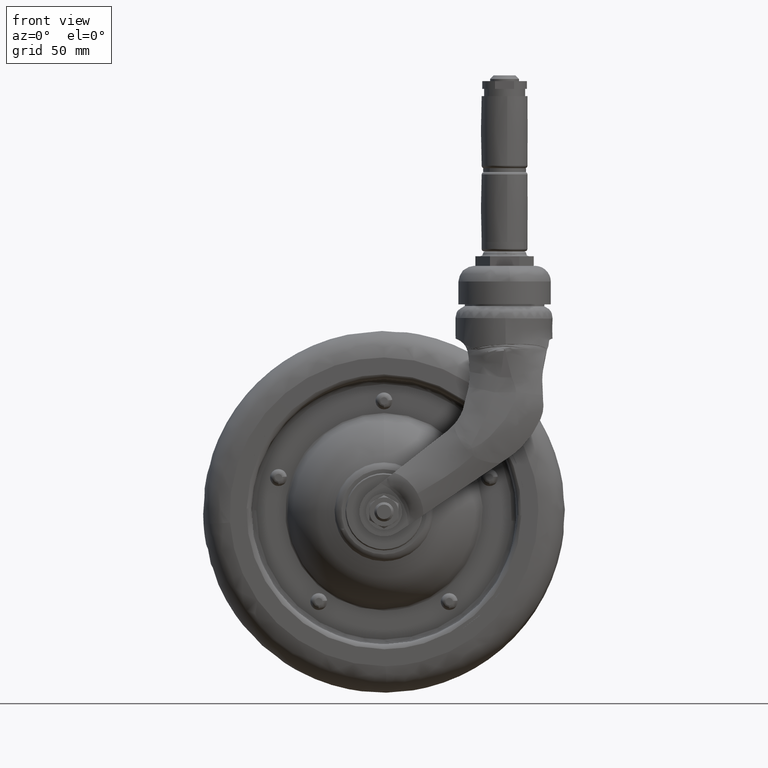
[diagram: clean part render]
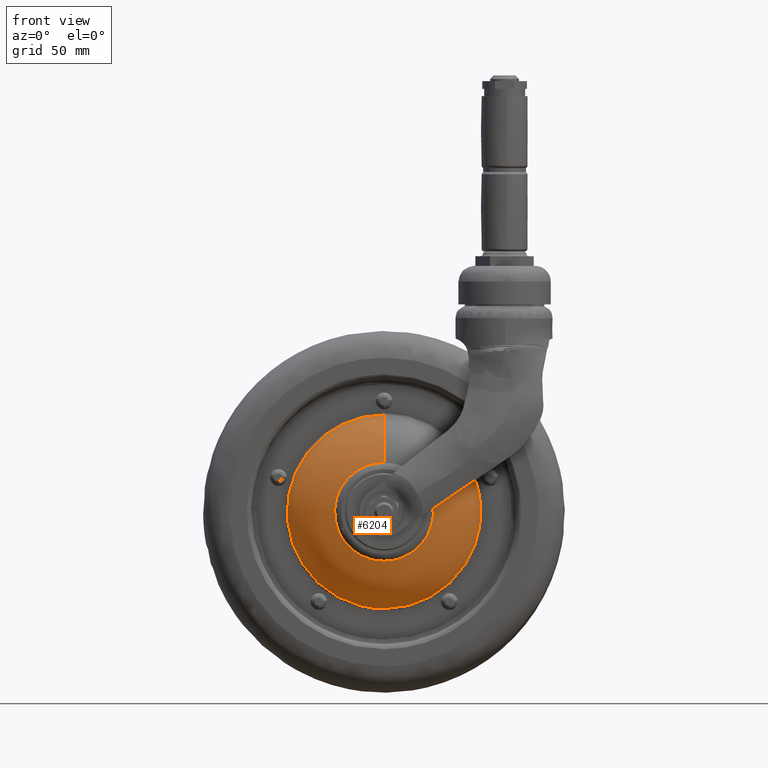
[diagram: same view with one face highlighted and labeled with its STEP entity id]
A machine part, front view. The second image highlights one B-rep face of the part: STEP entity #6204.
In plain terms, the highlighted face is a freeform B-spline surface patch.
Its self-contained STEP definition (entity closure, byte-faithful):
#2589=CARTESIAN_POINT('',(-24.494241567544019,-1.978960431667409,31.817445445923319));
#2590=VERTEX_POINT('',#2589);
#2591=CARTESIAN_POINT('',(0.0,-1.978906741935480,-40.153705379607203));
#2592=VERTEX_POINT('',#2591);
#2593=CARTESIAN_POINT('',(-24.494241567544019,-1.978960431667409,31.817445445923319));
#2594=CARTESIAN_POINT('',(-26.966019463600659,-1.978958991824047,29.915405191856109));
#2595=CARTESIAN_POINT('',(-30.806617439566850,-1.978956163817442,26.170494247999098));
#2596=CARTESIAN_POINT('',(-34.703907982289323,-1.978951867124223,20.463327648507569));
#2597=CARTESIAN_POINT('',(-37.526596968715751,-1.978947568089783,14.743390497954650));
#2598=CARTESIAN_POINT('',(-39.241085730417183,-1.978943453790768,9.260392022130620));
#2599=CARTESIAN_POINT('',(-40.160417413085348,-1.978938823026561,3.080050970328775));
#2600=CARTESIAN_POINT('',(-40.229630709134739,-1.978934433872858,-2.785027499417303));
#2601=CARTESIAN_POINT('',(-39.361882719845227,-1.978930097305453,-8.588235981418491));
#2602=CARTESIAN_POINT('',(-37.765456132856052,-1.978926093593329,-13.953152047487260));
#2603=CARTESIAN_POINT('',(-35.505252699287141,-1.978922274257157,-19.077622239299458));
#2604=CARTESIAN_POINT('',(-32.289185946475328,-1.978918507285237,-24.140689001786111));
#2605=CARTESIAN_POINT('',(-28.503365447594160,-1.978915311183395,-28.445952120832050));
#2606=CARTESIAN_POINT('',(-23.799732137884661,-1.978912265006219,-32.559090220364702));
#2607=CARTESIAN_POINT('',(-19.035601588809030,-1.978910070545651,-35.534530026971247));
#2608=CARTESIAN_POINT('',(-13.780173170475020,-1.978908407348865,-37.804392965716552));
#2609=CARTESIAN_POINT('',(-7.926738715626335,-1.978907110066175,-39.590610966784823));
#2610=CARTESIAN_POINT('',(-3.118890148089880,-1.978906720489815,-40.154381661647477));
#2611=CARTESIAN_POINT('',(0.0,-1.978906741935480,-40.153705379607203));
#2612=B_SPLINE_CURVE_WITH_KNOTS('',3,(#2593,#2594,#2595,#2596,#2597,#2598,#2599,#2600,#2601,#2602,#2603,#2604,#2605,#2606,#2607,#2608,#2609,#2610,#2611),.UNSPECIFIED.,.F.,.U.,(4,1,1,1,1,1,1,1,1,1,1,1,1,1,1,1,4),(0.000000098294947,9.356530273067961,15.984070397440821,20.662330314960780,28.459493575247048,33.137795891929443,39.375447965563183,46.003070834849609,50.681227289610653,56.139211600195033,62.766700054423481,68.614578512917959,73.292885141698235,81.479888587225830,85.378474723106677,90.446584796214267,99.803077252082971),.UNSPECIFIED.);
#2613=EDGE_CURVE('',#2590,#2592,#2612,.T.);
#2683=CARTESIAN_POINT('',(37.564166313767572,-1.978906741714115,14.186383079374350));
#2684=VERTEX_POINT('',#2683);
#2692=CARTESIAN_POINT('',(0.0,-1.978906741935480,-40.153705379607203));
#2693=CARTESIAN_POINT('',(2.727184587800870,-1.978906741944793,-40.154031587075330));
#2694=CARTESIAN_POINT('',(8.282403377795726,-1.978906741960102,-39.585695282387853));
#2695=CARTESIAN_POINT('',(15.828826639747870,-1.978906741970346,-37.173585430974867));
#2696=CARTESIAN_POINT('',(21.872876312029920,-1.978906741969643,-33.856679267281272));
#2697=CARTESIAN_POINT('',(27.018843031017109,-1.978906741961893,-29.922219000029919));
#2698=CARTESIAN_POINT('',(31.576480428964370,-1.978906741946810,-25.159146633553270));
#2699=CARTESIAN_POINT('',(35.033972374493580,-1.978906741924827,-19.906935317529140));
#2700=CARTESIAN_POINT('',(37.311436577579450,-1.978906741901365,-15.053959413008640));
#2701=CARTESIAN_POINT('',(39.111701981902080,-1.978906741873694,-9.788924850787366));
#2702=CARTESIAN_POINT('',(40.117287422458567,-1.978906741840424,-4.091924439282451));
#2703=CARTESIAN_POINT('',(40.205504460367031,-1.978906741805574,1.371696992638945));
#2704=CARTESIAN_POINT('',(39.682016128252663,-1.978906741766232,7.212670680761350));
#2705=CARTESIAN_POINT('',(38.635369461605791,-1.978906741735944,11.351781569597460));
#2706=CARTESIAN_POINT('',(37.564166313767572,-1.978906741714115,14.186383079374350));
#2707=B_SPLINE_CURVE_WITH_KNOTS('',3,(#2692,#2693,#2694,#2695,#2696,#2697,#2698,#2699,#2700,#2701,#2702,#2703,#2704,#2705,#2706),.UNSPECIFIED.,.F.,.U.,(4,1,1,1,1,1,1,1,1,1,1,1,4),(0.000000190427258,8.181515767689433,16.666039733911369,23.635527693192120,28.786827475129449,36.059310973043438,43.331653535268828,47.573985266815569,52.119290624519671,59.997806060697620,64.846115941488094,68.482350215274522,77.572913906646548),.UNSPECIFIED.);
#2708=EDGE_CURVE('',#2592,#2684,#2707,.T.);
#2736=CARTESIAN_POINT('',(0.0,-1.978968418130079,40.153667723798378));
#2737=VERTEX_POINT('',#2736);
#2738=CARTESIAN_POINT('',(0.0,-1.978968418130079,40.153667723798378));
#2739=CARTESIAN_POINT('',(-3.155874450732798,-1.978968235830945,40.154464402714453));
#2740=CARTESIAN_POINT('',(-7.408948850448293,-1.978967591596224,39.649582362758672));
#2741=CARTESIAN_POINT('',(-13.089080984158830,-1.978965991149722,38.035823673325602));
#2742=CARTESIAN_POINT('',(-18.324726305449431,-1.978964043886832,35.949084151987734));
#2743=CARTESIAN_POINT('',(-22.211364721133311,-1.978961948924541,33.575579583273679));
#2744=CARTESIAN_POINT('',(-24.494241567544019,-1.978960431667409,31.817445445923319));
#2745=B_SPLINE_CURVE_WITH_KNOTS('',3,(#2738,#2739,#2740,#2741,#2742,#2743,#2744),.UNSPECIFIED.,.F.,.U.,(4,1,1,1,4),(6.605671E-009,9.467370899617691,12.760368842972939,17.699865002030819,26.343985926508701),.UNSPECIFIED.);
#2746=EDGE_CURVE('',#2737,#2590,#2745,.T.);
#3118=CARTESIAN_POINT('',(19.244042876104860,-15.749896956222120,7.065172944055531));
#3119=VERTEX_POINT('',#3118);
#3130=CARTESIAN_POINT('',(0.0,-15.749887032579160,20.500001718488630));
#3131=VERTEX_POINT('',#3130);
#3145=CARTESIAN_POINT('',(-18.808470711593650,-15.749887639794400,-8.154226731409059));
#3146=VERTEX_POINT('',#3145);
#3147=CARTESIAN_POINT('',(-18.808470711593650,-15.749887639794400,-8.154226731409059));
#3148=CARTESIAN_POINT('',(-19.523688578647519,-15.749887589030410,-6.505811167211627));
#3149=CARTESIAN_POINT('',(-20.282499127596019,-15.749887510436720,-3.839888735883888));
#3150=CARTESIAN_POINT('',(-20.586121445629399,-15.749887400901409,0.121807368716864));
#3151=CARTESIAN_POINT('',(-20.334023880931170,-15.749887320394601,3.188812612771966));
#3152=CARTESIAN_POINT('',(-19.638426150327430,-15.749887248751550,6.072033182264242));
#3153=CARTESIAN_POINT('',(-18.563167831755919,-15.749887182157369,8.892097455200091));
#3154=CARTESIAN_POINT('',(-17.036305371558282,-15.749887123506420,11.565120799744520));
#3155=CARTESIAN_POINT('',(-14.967395158166379,-15.749887072922901,14.116148747747250));
#3156=CARTESIAN_POINT('',(-12.819301531127699,-15.749887038678761,16.087214602840650));
#3157=CARTESIAN_POINT('',(-10.020597440589640,-15.749887011750291,17.999597380055871));
#3158=CARTESIAN_POINT('',(-6.928319615601082,-15.749887000815971,19.414864344265819));
#3159=CARTESIAN_POINT('',(-3.382225095675959,-15.749887007891379,20.310655232784171));
#3160=CARTESIAN_POINT('',(-1.162645629883573,-15.749887022334960,20.500092159422081));
#3161=CARTESIAN_POINT('',(0.0,-15.749887032579160,20.500001718488630));
#3162=B_SPLINE_CURVE_WITH_KNOTS('',3,(#3147,#3148,#3149,#3150,#3151,#3152,#3153,#3154,#3155,#3156,#3157,#3158,#3159,#3160,#3161),.UNSPECIFIED.,.F.,.U.,(4,1,1,1,1,1,1,1,1,1,1,1,4),(0.000000298345419,5.390482022558594,8.244345433323765,11.890923000655070,14.586198236808240,17.122970156784518,20.927895219243499,23.781729765425389,26.952679526806509,29.647969229186138,33.928730040646627,37.099679802028383,40.587606290436291),.UNSPECIFIED.);
#3163=EDGE_CURVE('',#3146,#3131,#3162,.T.);
#3216=CARTESIAN_POINT('',(0.0,-15.749887444684401,-20.499999682383251));
#3217=VERTEX_POINT('',#3216);
#3218=CARTESIAN_POINT('',(0.0,-15.749887444684401,-20.499999682383251));
#3219=CARTESIAN_POINT('',(-1.798575650054507,-15.749887444675950,-20.500534572317971));
#3220=CARTESIAN_POINT('',(-4.961300104474028,-15.749887451305460,-20.081045305689258));
#3221=CARTESIAN_POINT('',(-8.748465264048718,-15.749887474045231,-18.642163574888041));
#3222=CARTESIAN_POINT('',(-11.757403691499180,-15.749887501678050,-16.893675050964688));
#3223=CARTESIAN_POINT('',(-14.274005528027200,-15.749887533884239,-14.855787122288980));
#3224=CARTESIAN_POINT('',(-16.852051957041478,-15.749887580558340,-11.902451440395881));
#3225=CARTESIAN_POINT('',(-18.192008838252839,-15.749887617310881,-9.576900764971247));
#3226=CARTESIAN_POINT('',(-18.808470711593650,-15.749887639794400,-8.154226731409059));
#3227=B_SPLINE_CURVE_WITH_KNOTS('',3,(#3218,#3219,#3220,#3221,#3222,#3223,#3224,#3225,#3226),.UNSPECIFIED.,.F.,.U.,(4,1,1,1,1,1,4),(0.000000117553892,5.395630767866962,9.488922616980618,12.093604836767190,15.814772872866881,19.163818075862618,23.815226675601220),.UNSPECIFIED.);
#3228=EDGE_CURVE('',#3217,#3146,#3227,.T.);
#3230=CARTESIAN_POINT('',(19.244042876104860,-15.749896956222120,7.065172944055531));
#3231=CARTESIAN_POINT('',(19.863611817573620,-15.749896665428199,5.379146277920404));
#3232=CARTESIAN_POINT('',(20.530534962917471,-15.749896082023531,2.398743170919353));
#3233=CARTESIAN_POINT('',(20.526007472998550,-15.749895196673391,-1.414453209033914));
#3234=CARTESIAN_POINT('',(20.064934390382909,-15.749894402482891,-4.515969926766143));
#3235=CARTESIAN_POINT('',(19.308124538994608,-15.749893684017550,-7.084605379360448));
#3236=CARTESIAN_POINT('',(18.077592656787541,-15.749892854750369,-9.800138039839490));
#3237=CARTESIAN_POINT('',(16.626783625137730,-15.749892083720651,-12.110852953385640));
#3238=CARTESIAN_POINT('',(14.631146174284799,-15.749891214583929,-14.464099196535891));
#3239=CARTESIAN_POINT('',(11.962275936998131,-15.749890238123720,-16.809965814751038));
#3240=CARTESIAN_POINT('',(8.522468094262637,-15.749889218020771,-18.805739134239769));
#3241=CARTESIAN_POINT('',(4.362125295023308,-15.749888225296971,-20.180464729845060));
#3242=CARTESIAN_POINT('',(1.539641089956204,-15.749887693970271,-20.500310220403900));
#3243=CARTESIAN_POINT('',(0.0,-15.749887444684401,-20.499999682383251));
#3244=B_SPLINE_CURVE_WITH_KNOTS('',3,(#3230,#3231,#3232,#3233,#3234,#3235,#3236,#3237,#3238,#3239,#3240,#3241,#3242,#3243),.UNSPECIFIED.,.F.,.U.,(4,1,1,1,1,1,1,1,1,1,1,4),(0.000000276023592,5.388646517002535,9.083811873968539,11.393261730342280,14.780500740764881,17.089963464352010,20.323033572067569,22.940393755384640,26.327651156308811,30.946560454328392,34.795659243361307,39.414505104668102),.UNSPECIFIED.);
#3245=EDGE_CURVE('',#3119,#3217,#3244,.T.);
#6111=CARTESIAN_POINT('',(37.763101712961493,-0.933227421716734,15.385658088339733));
#6112=CARTESIAN_POINT('',(36.512315469258930,-3.359637523718423,14.876055629477072));
#6113=CARTESIAN_POINT('',(34.870203399528087,-5.497009758219606,14.207016972651303));
#6114=CARTESIAN_POINT('',(28.171808745471623,-14.215636831984579,11.477918852707873));
#6115=CARTESIAN_POINT('',(17.806808517392870,-15.979939339729357,7.254951396090100));
#6116=CARTESIAN_POINT('',(37.949391218958844,-0.933227421716734,14.892381546556496));
#6117=CARTESIAN_POINT('',(36.692434710080001,-3.359637523718423,14.399117351364369));
#6118=CARTESIAN_POINT('',(35.042221922124604,-5.497009758219604,13.751528610626909));
#6119=CARTESIAN_POINT('',(28.310783355505958,-14.215636831984586,11.109927565885812));
#6120=CARTESIAN_POINT('',(17.894651449027798,-15.979939339729356,7.022351833892564));
#6121=CARTESIAN_POINT('',(40.763517522460532,-0.933227421716734,7.440848065372125));
#6122=CARTESIAN_POINT('',(39.413351761459978,-3.359637523718422,7.194392928493000));
#6123=CARTESIAN_POINT('',(37.640767913948814,-5.497009758219604,6.870830883456136));
#6124=CARTESIAN_POINT('',(30.410161436534700,-14.215636831984582,5.550978047172089));
#6125=CARTESIAN_POINT('',(19.221624233496229,-15.979939339729356,3.508656617091839));
#6126=CARTESIAN_POINT('',(40.763517522460525,-0.933227421716734,0.0));
#6127=CARTESIAN_POINT('',(39.413351761459978,-3.359637523718423,0.0));
#6128=CARTESIAN_POINT('',(37.640767913948807,-5.497009758219604,0.0));
#6129=CARTESIAN_POINT('',(30.410161436534707,-14.215636831984575,0.0));
#6130=CARTESIAN_POINT('',(19.221624233496236,-15.979939339729365,0.0));
#6131=CARTESIAN_POINT('',(40.763517522460532,-0.933227421716734,-40.763517522460532));
#6132=CARTESIAN_POINT('',(39.413351761459971,-3.359637523718422,-39.413351761459971));
#6133=CARTESIAN_POINT('',(37.640767913948821,-5.497009758219604,-37.640767913948821));
#6134=CARTESIAN_POINT('',(30.410161436534707,-14.215636831984582,-30.410161436534707));
#6135=CARTESIAN_POINT('',(19.221624233496222,-15.979939339729357,-19.221624233496239));
#6136=CARTESIAN_POINT('',(0.0,-0.933227421716734,-40.763517522460525));
#6137=CARTESIAN_POINT('',(0.0,-3.359637523718423,-39.413351761459978));
#6138=CARTESIAN_POINT('',(0.0,-5.497009758219604,-37.640767913948807));
#6139=CARTESIAN_POINT('',(0.0,-14.215636831984575,-30.410161436534707));
#6140=CARTESIAN_POINT('',(0.0,-15.979939339729365,-19.221624233496236));
#6141=CARTESIAN_POINT('',(-40.763517522460532,-0.933227421716734,-40.763517522460532));
#6142=CARTESIAN_POINT('',(-39.413351761459971,-3.359637523718422,-39.413351761459971));
#6143=CARTESIAN_POINT('',(-37.640767913948821,-5.497009758219604,-37.640767913948821));
#6144=CARTESIAN_POINT('',(-30.410161436534707,-14.215636831984582,-30.410161436534707));
#6145=CARTESIAN_POINT('',(-19.221624233496239,-15.979939339729357,-19.221624233496222));
#6146=CARTESIAN_POINT('',(-40.763517522460525,-0.933227421716734,0.0));
#6147=CARTESIAN_POINT('',(-39.413351761459978,-3.359637523718423,0.0));
#6148=CARTESIAN_POINT('',(-37.640767913948807,-5.497009758219604,0.0));
#6149=CARTESIAN_POINT('',(-30.410161436534707,-14.215636831984575,0.0));
#6150=CARTESIAN_POINT('',(-19.221624233496236,-15.979939339729365,0.0));
#6151=CARTESIAN_POINT('',(-40.763517522460532,-0.933227421716734,40.763517522460532));
#6152=CARTESIAN_POINT('',(-39.413351761459971,-3.359637523718422,39.413351761459971));
#6153=CARTESIAN_POINT('',(-37.640767913948821,-5.497009758219604,37.640767913948821));
#6154=CARTESIAN_POINT('',(-30.410161436534707,-14.215636831984582,30.410161436534707));
#6155=CARTESIAN_POINT('',(-19.221624233496222,-15.979939339729357,19.221624233496239));
#6156=CARTESIAN_POINT('',(0.464746682410618,-0.933227421716734,40.763517522460525));
#6157=CARTESIAN_POINT('',(0.449353382316148,-3.359637523718422,39.413351761459978));
#6158=CARTESIAN_POINT('',(0.429144074766289,-5.497009758219604,37.640767913948807));
#6159=CARTESIAN_POINT('',(0.346707607639934,-14.215636831984575,30.410161436534704));
#6160=CARTESIAN_POINT('',(0.219146595681758,-15.979939339729359,19.221624233496232));
#6161=CARTESIAN_POINT('',(0.925124494638037,-0.933227421716734,40.763517522460525));
#6162=CARTESIAN_POINT('',(0.894482599795793,-3.359637523718423,39.413351761459971));
#6163=CARTESIAN_POINT('',(0.854253963117695,-5.497009758219604,37.640767913948814));
#6164=CARTESIAN_POINT('',(0.690155976243562,-14.215636831984575,30.410161436534704));
#6165=CARTESIAN_POINT('',(0.436233094833816,-15.979939339729356,19.221624233496232));
#6173=(BOUNDED_SURFACE()B_SPLINE_SURFACE(2,2,((#6111,#6116,#6121,#6126,#6131,#6136,#6141,#6146,#6151,#6156,#6161),(#6112,#6117,#6122,#6127,#6132,#6137,#6142,#6147,#6152,#6157,#6162),(#6113,#6118,#6123,#6128,#6133,#6138,#6143,#6148,#6153,#6158,#6163),(#6114,#6119,#6124,#6129,#6134,#6139,#6144,#6149,#6154,#6159,#6164),(#6115,#6120,#6125,#6130,#6135,#6140,#6145,#6150,#6155,#6160,#6165)),.UNSPECIFIED.,.F.,.F.,.U.)B_SPLINE_SURFACE_WITH_KNOTS((3,2,3),(3,1,2,2,2,1,3),(0.0,6.072004296249989,28.599454510846002),(0.0,1.094357010629121,17.303766746152121,84.842973977497934,152.382181208843800,219.921388440189590,221.015524676751910),.UNSPECIFIED.)GEOMETRIC_REPRESENTATION_ITEM()RATIONAL_B_SPLINE_SURFACE(((0.838876168061544,0.841206911962104,0.878060195130751,0.944449693723225,0.667826782921250,0.944449693723225,0.667826782921250,0.944449693723225,0.667826782921250,0.948930989299216,0.953412284875207),(0.859520100208085,0.861908201464553,0.899668408331925,0.967691688352894,0.684261354932190,0.967691688352894,0.684261354932190,0.967691688352894,0.684261354932190,0.972283264284105,0.976874840215316),(0.888216888243685,0.890684721010269,0.929705627484771,1.0,0.707106781186548,1.0,0.707106781186548,1.0,0.707106781186548,1.004744874825810,1.009489749651620),(0.781750319339897,0.783922344077199,0.818265989757808,0.880134491571862,0.622349067346638,0.880134491571862,0.622349067346638,0.880134491571862,0.622349067346638,0.884310619564249,0.888486747556635),(0.786127156861160,0.788311342257859,0.822847269992358,0.885062159103513,0.625833454473701,0.885062159103513,0.625833454473701,0.885062159103513,0.625833454473701,0.889261668261520,0.893461177419528)))REPRESENTATION_ITEM('')SURFACE());
#6174=ORIENTED_EDGE('',*,*,#3245,.T.);
#6175=ORIENTED_EDGE('',*,*,#3228,.T.);
#6176=ORIENTED_EDGE('',*,*,#3163,.T.);
#6177=CARTESIAN_POINT('',(0.0,-1.978968418130079,40.153667723798378));
#6178=CARTESIAN_POINT('',(0.0,-3.021588877122701,39.517125478336780));
#6179=CARTESIAN_POINT('',(0.0,-5.504438731068258,37.784783453668012));
#6180=CARTESIAN_POINT('',(0.0,-9.293727024996256,34.181550854038612));
#6181=CARTESIAN_POINT('',(0.0,-12.299993462909390,29.890968458646789));
#6182=CARTESIAN_POINT('',(0.0,-14.525826700227940,25.171997846377810));
#6183=CARTESIAN_POINT('',(0.0,-15.392952019126749,22.264502767677541));
#6184=CARTESIAN_POINT('',(0.0,-15.749887032579160,20.500001718488630));
#6185=B_SPLINE_CURVE_WITH_KNOTS('',3,(#6177,#6178,#6179,#6180,#6181,#6182,#6183,#6184),.UNSPECIFIED.,.F.,.U.,(4,1,1,1,1,4),(0.000000045616730,3.664736007330319,9.065473007178424,15.623415961842429,19.288200032523651,24.688888923404669),.UNSPECIFIED.);
#6186=EDGE_CURVE('',#2737,#3131,#6185,.T.);
#6187=ORIENTED_EDGE('',*,*,#6186,.F.);
#6188=ORIENTED_EDGE('',*,*,#2746,.T.);
#6189=ORIENTED_EDGE('',*,*,#2613,.T.);
#6190=ORIENTED_EDGE('',*,*,#2708,.T.);
#6191=CARTESIAN_POINT('',(37.564166313767572,-1.978906741714115,14.186383079374350));
#6192=CARTESIAN_POINT('',(36.433106515799878,-3.955053331819275,13.768967899976490));
#6193=CARTESIAN_POINT('',(34.342504610058853,-6.809895301076107,12.981678617839320));
#6194=CARTESIAN_POINT('',(31.107004312318900,-9.892889124078481,11.736864485910900));
#6195=CARTESIAN_POINT('',(28.354649446591910,-11.961779708361339,10.666997038050891));
#6196=CARTESIAN_POINT('',(24.554772794341439,-14.167219214244090,9.177092428157080));
#6197=CARTESIAN_POINT('',(21.351381745275621,-15.291775411414680,7.906554671561717));
#6198=CARTESIAN_POINT('',(19.244042876104860,-15.749896956222120,7.065172944055531));
#6199=B_SPLINE_CURVE_WITH_KNOTS('',3,(#6191,#6192,#6193,#6194,#6195,#6196,#6197,#6198),.UNSPECIFIED.,.F.,.U.,(4,1,1,1,1,4),(0.000000045762771,6.944509973086188,10.802600465409091,13.888970707743290,17.747061200066138,24.691571127390180),.UNSPECIFIED.);
#6200=EDGE_CURVE('',#2684,#3119,#6199,.T.);
#6201=ORIENTED_EDGE('',*,*,#6200,.T.);
#6202=EDGE_LOOP('',(#6174,#6175,#6176,#6187,#6188,#6189,#6190,#6201));
#6203=FACE_OUTER_BOUND('',#6202,.T.);
#6204=ADVANCED_FACE('',(#6203),#6173,.T.);